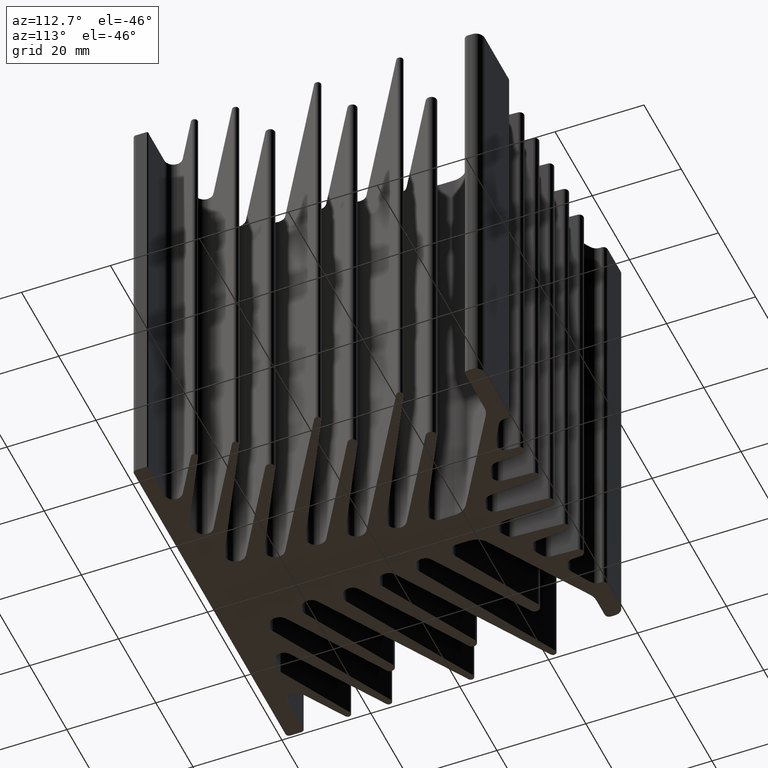
[diagram: clean part render]
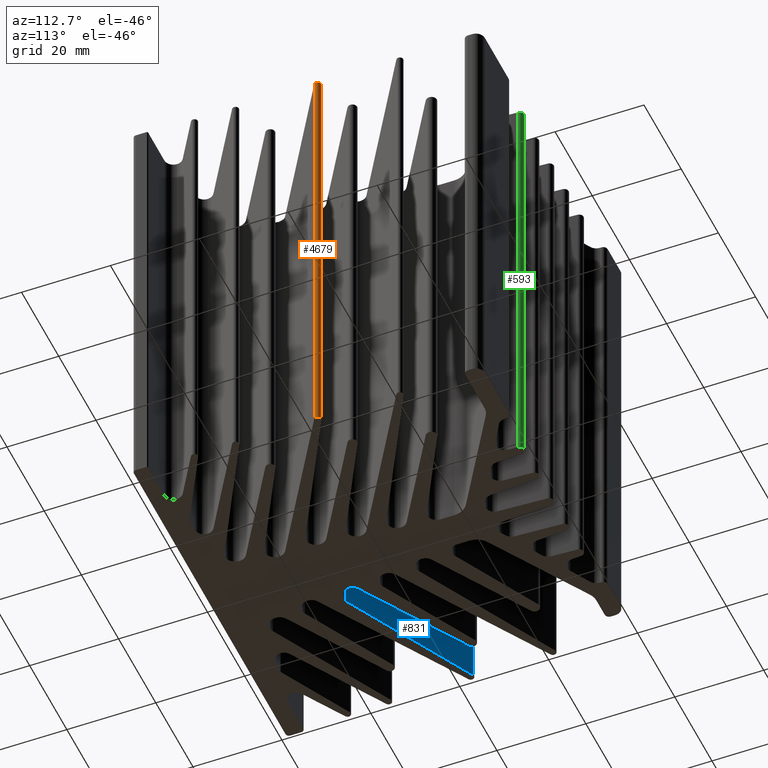
[diagram: same view with three faces highlighted in distinct colors, each labeled with its STEP entity id]
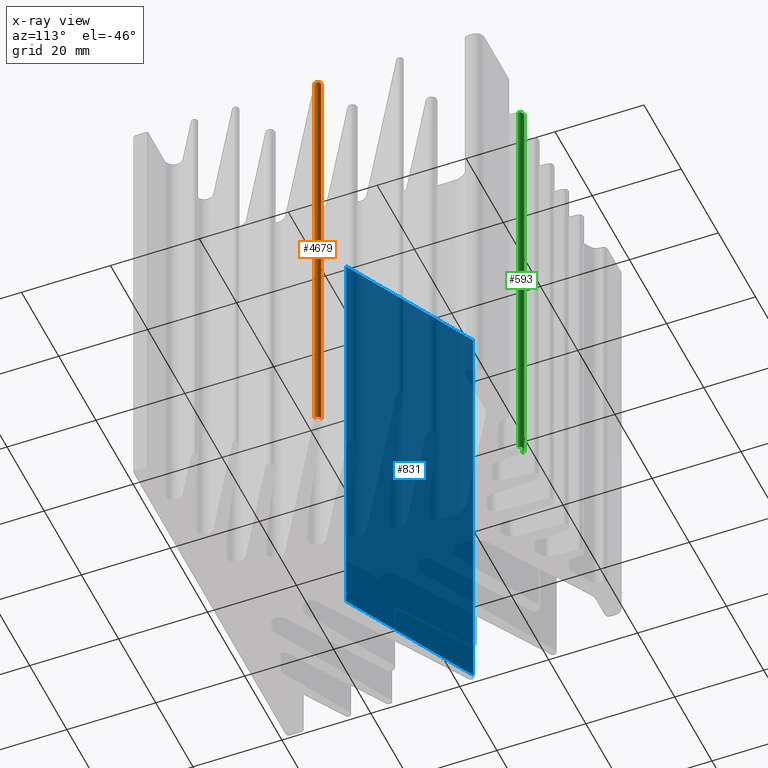
[diagram: x-ray of the same camera — body ghosted, the three highlighted faces saturated]
A machine part, auxiliary view with three faces highlighted in distinct colors.
The next image is the same camera in x-ray (body ghosted, the three faces saturated) — at least one of them is partly hidden behind the body in this view.
Their STEP definitions:

[orange] entity #4679 — the highlighted cylindrical surface (edge-blend (fillet) strip) has radius 0.75 mm, axis along (-0, -0, -1).
#145 = DIRECTION ( 'NONE',  ( 0.0000000000000000000, 0.0000000000000000000, 1.000000000000000000 ) ) ;
#196 = VERTEX_POINT ( 'NONE', #1088 ) ;
#283 = FACE_OUTER_BOUND ( 'NONE', #2472, .T. ) ;
#342 = ORIENTED_EDGE ( 'NONE', *, *, #1888, .F. ) ;
#564 = DIRECTION ( 'NONE',  ( -1.000000000000000000, 0.0000000000000000000, 0.0000000000000000000 ) ) ;
#759 = AXIS2_PLACEMENT_3D ( 'NONE', #1435, #1848, #1783 ) ;
#1070 = AXIS2_PLACEMENT_3D ( 'NONE', #1317, #145, #4347 ) ;
#1088 = CARTESIAN_POINT ( 'NONE',  ( 40.81286055483614916, 1.074023591743298089, 50.00000000000000000 ) ) ;
#1128 = VERTEX_POINT ( 'NONE', #3760 ) ;
#1317 = CARTESIAN_POINT ( 'NONE',  ( 40.39999999998912017, 1.700159489334612584, -50.00000000000000000 ) ) ;
#1424 = LINE ( 'NONE', #4062, #3805 ) ;
#1435 = CARTESIAN_POINT ( 'NONE',  ( 40.39999999998912017, 1.700159489334612584, 50.00000000000000000 ) ) ;
#1783 = DIRECTION ( 'NONE',  ( 1.000000000000000000, 0.0000000000000000000, 0.0000000000000000000 ) ) ;
#1848 = DIRECTION ( 'NONE',  ( 0.0000000000000000000, 0.0000000000000000000, 1.000000000000000000 ) ) ;
#1888 = EDGE_CURVE ( 'NONE', #196, #4807, #2731, .T. ) ;
#1963 = ORIENTED_EDGE ( 'NONE', *, *, #4461, .T. ) ;
#2089 = CARTESIAN_POINT ( 'NONE',  ( 40.06418068438399871, 2.370775167102130876, -50.00000000000000000 ) ) ;
#2358 = EDGE_CURVE ( 'NONE', #1128, #4550, #3577, .T. ) ;
#2472 = EDGE_LOOP ( 'NONE', ( #4587, #3195, #342, #1963 ) ) ;
#2731 = CIRCLE ( 'NONE', #759, 0.7500000000007223111 ) ;
#2848 = CARTESIAN_POINT ( 'NONE',  ( 40.06418068438399871, 2.370775167102130876, 50.00000000000000000 ) ) ;
#3004 = CARTESIAN_POINT ( 'NONE',  ( 40.06418068438399871, 2.370775167102130876, 50.00000000000000000 ) ) ;
#3011 = CYLINDRICAL_SURFACE ( 'NONE', #3955, 0.7500000000007223111 ) ;
#3030 = DIRECTION ( 'NONE',  ( -0.0000000000000000000, -0.0000000000000000000, -1.000000000000000000 ) ) ;
#3110 = LINE ( 'NONE', #2848, #3948 ) ;
#3195 = ORIENTED_EDGE ( 'NONE', *, *, #3780, .F. ) ;
#3577 = CIRCLE ( 'NONE', #1070, 0.7500000000007223111 ) ;
#3698 = DIRECTION ( 'NONE',  ( -0.0000000000000000000, -0.0000000000000000000, -1.000000000000000000 ) ) ;
#3760 = CARTESIAN_POINT ( 'NONE',  ( 40.81286055483614916, 1.074023591743298089, -50.00000000000000000 ) ) ;
#3767 = CARTESIAN_POINT ( 'NONE',  ( 40.39999999998912017, 1.700159489334612584, 50.00000000000000000 ) ) ;
#3780 = EDGE_CURVE ( 'NONE', #4807, #4550, #3110, .T. ) ;
#3805 = VECTOR ( 'NONE', #3698, 1000.000000000000000 ) ;
#3887 = DIRECTION ( 'NONE',  ( -0.0000000000000000000, -0.0000000000000000000, -1.000000000000000000 ) ) ;
#3948 = VECTOR ( 'NONE', #3030, 1000.000000000000000 ) ;
#3955 = AXIS2_PLACEMENT_3D ( 'NONE', #3767, #3887, #564 ) ;
#4062 = CARTESIAN_POINT ( 'NONE',  ( 40.81286055483614916, 1.074023591743298089, 50.00000000000000000 ) ) ;
#4347 = DIRECTION ( 'NONE',  ( 1.000000000000000000, 0.0000000000000000000, 0.0000000000000000000 ) ) ;
#4461 = EDGE_CURVE ( 'NONE', #196, #1128, #1424, .T. ) ;
#4550 = VERTEX_POINT ( 'NONE', #2089 ) ;
#4587 = ORIENTED_EDGE ( 'NONE', *, *, #2358, .T. ) ;
#4679 = ADVANCED_FACE ( 'NONE', ( #283 ), #3011, .T. ) ;
#4807 = VERTEX_POINT ( 'NONE', #3004 ) ;

[blue] entity #831 — the highlighted planar face has unit normal (-0.4741, -0.8805, 0).
#250 = DIRECTION ( 'NONE',  ( -0.8804773535090839598, 0.4740882090472611776, 0.0000000000000000000 ) ) ;
#409 = ORIENTED_EDGE ( 'NONE', *, *, #2507, .T. ) ;
#441 = VECTOR ( 'NONE', #4682, 1000.000000000000000 ) ;
#639 = DIRECTION ( 'NONE',  ( -0.8804773535090839598, 0.4740882090472611776, 0.0000000000000000000 ) ) ;
#831 = ADVANCED_FACE ( 'NONE', ( #4342 ), #2980, .F. ) ;
#842 = DIRECTION ( 'NONE',  ( -0.0000000000000000000, -0.0000000000000000000, -1.000000000000000000 ) ) ;
#983 = ORIENTED_EDGE ( 'NONE', *, *, #4371, .F. ) ;
#1003 = CARTESIAN_POINT ( 'NONE',  ( -40.06418068438687641, 2.970775167098728353, 50.00000000000000000 ) ) ;
#1147 = VERTEX_POINT ( 'NONE', #2873 ) ;
#1183 = CARTESIAN_POINT ( 'NONE',  ( -10.21690614448378831, -13.10032634978836619, -50.00000000000000000 ) ) ;
#1333 = VERTEX_POINT ( 'NONE', #1003 ) ;
#1365 = EDGE_LOOP ( 'NONE', ( #409, #3212, #983, #2351 ) ) ;
#1383 = DIRECTION ( 'NONE',  ( 0.8804773535090839598, -0.4740882090472611776, 0.0000000000000000000 ) ) ;
#1563 = CARTESIAN_POINT ( 'NONE',  ( -40.06418068438687641, 2.970775167098728353, -50.00000000000000000 ) ) ;
#1702 = VECTOR ( 'NONE', #842, 1000.000000000000000 ) ;
#1881 = VECTOR ( 'NONE', #250, 1000.000000000000000 ) ;
#2112 = EDGE_CURVE ( 'NONE', #1333, #3245, #2869, .T. ) ;
#2205 = CARTESIAN_POINT ( 'NONE',  ( -10.21690614448378831, -13.10032634978836619, 50.00000000000000000 ) ) ;
#2288 = VECTOR ( 'NONE', #639, 1000.000000000000000 ) ;
#2300 = CARTESIAN_POINT ( 'NONE',  ( -10.21690614448378831, -13.10032634978836619, 50.00000000000000000 ) ) ;
#2351 = ORIENTED_EDGE ( 'NONE', *, *, #3935, .T. ) ;
#2411 = LINE ( 'NONE', #2205, #2288 ) ;
#2507 = EDGE_CURVE ( 'NONE', #1147, #3245, #3736, .T. ) ;
#2869 = LINE ( 'NONE', #3676, #1702 ) ;
#2873 = CARTESIAN_POINT ( 'NONE',  ( -10.21690614448378831, -13.10032634978836619, -50.00000000000000000 ) ) ;
#2980 = PLANE ( 'NONE',  #3589 ) ;
#3212 = ORIENTED_EDGE ( 'NONE', *, *, #2112, .F. ) ;
#3245 = VERTEX_POINT ( 'NONE', #1563 ) ;
#3466 = CARTESIAN_POINT ( 'NONE',  ( -10.21690614448378831, -13.10032634978836619, 50.00000000000000000 ) ) ;
#3589 = AXIS2_PLACEMENT_3D ( 'NONE', #3994, #4147, #1383 ) ;
#3676 = CARTESIAN_POINT ( 'NONE',  ( -40.06418068438687641, 2.970775167098728353, 50.00000000000000000 ) ) ;
#3736 = LINE ( 'NONE', #1183, #1881 ) ;
#3935 = EDGE_CURVE ( 'NONE', #4206, #1147, #4356, .T. ) ;
#3994 = CARTESIAN_POINT ( 'NONE',  ( -10.21690614448378831, -13.10032634978836619, 50.00000000000000000 ) ) ;
#4147 = DIRECTION ( 'NONE',  ( -0.4740882090472611776, -0.8804773535090839598, 0.0000000000000000000 ) ) ;
#4206 = VERTEX_POINT ( 'NONE', #2300 ) ;
#4342 = FACE_OUTER_BOUND ( 'NONE', #1365, .T. ) ;
#4356 = LINE ( 'NONE', #3466, #441 ) ;
#4371 = EDGE_CURVE ( 'NONE', #4206, #1333, #2411, .T. ) ;
#4682 = DIRECTION ( 'NONE',  ( -0.0000000000000000000, -0.0000000000000000000, -1.000000000000000000 ) ) ;

[green] entity #593 — the highlighted cylindrical surface (edge-blend (fillet) strip) has radius 1 mm, axis along (-0, -0, -1).
#244 = ORIENTED_EDGE ( 'NONE', *, *, #297, .F. ) ;
#297 = EDGE_CURVE ( 'NONE', #4213, #4290, #512, .T. ) ;
#347 = CARTESIAN_POINT ( 'NONE',  ( 15.00102793039844329, 36.94532994783502033, 50.00000000000000000 ) ) ;
#385 = CARTESIAN_POINT ( 'NONE',  ( 15.00102793039844329, 36.94532994783502033, -50.00000000000000000 ) ) ;
#512 = CIRCLE ( 'NONE', #818, 1.000000000000476286 ) ;
#593 = ADVANCED_FACE ( 'NONE', ( #1468 ), #2169, .T. ) ;
#631 = EDGE_CURVE ( 'NONE', #2071, #3149, #2944, .T. ) ;
#650 = DIRECTION ( 'NONE',  ( 0.0000000000000000000, 0.0000000000000000000, 1.000000000000000000 ) ) ;
#818 = AXIS2_PLACEMENT_3D ( 'NONE', #2277, #1297, #1014 ) ;
#927 = ORIENTED_EDGE ( 'NONE', *, *, #631, .T. ) ;
#1014 = DIRECTION ( 'NONE',  ( 1.000000000000000000, 0.0000000000000000000, 0.0000000000000000000 ) ) ;
#1027 = CARTESIAN_POINT ( 'NONE',  ( 15.99999999999319655, 36.90000000000222258, -50.00000000000000000 ) ) ;
#1185 = AXIS2_PLACEMENT_3D ( 'NONE', #1027, #650, #2862 ) ;
#1297 = DIRECTION ( 'NONE',  ( 0.0000000000000000000, 0.0000000000000000000, 1.000000000000000000 ) ) ;
#1459 = EDGE_LOOP ( 'NONE', ( #927, #3193, #244, #4769 ) ) ;
#1468 = FACE_OUTER_BOUND ( 'NONE', #1459, .T. ) ;
#1494 = EDGE_CURVE ( 'NONE', #4213, #2071, #2433, .T. ) ;
#1785 = VECTOR ( 'NONE', #2907, 1000.000000000000000 ) ;
#1844 = CARTESIAN_POINT ( 'NONE',  ( 15.00102793039844329, 36.94532994783502033, 50.00000000000000000 ) ) ;
#2071 = VERTEX_POINT ( 'NONE', #2084 ) ;
#2084 = CARTESIAN_POINT ( 'NONE',  ( 16.99897206958803508, 36.94532994783317292, -50.00000000000000000 ) ) ;
#2093 = AXIS2_PLACEMENT_3D ( 'NONE', #2602, #4730, #4412 ) ;
#2129 = DIRECTION ( 'NONE',  ( -0.0000000000000000000, -0.0000000000000000000, -1.000000000000000000 ) ) ;
#2169 = CYLINDRICAL_SURFACE ( 'NONE', #2093, 1.000000000000474509 ) ;
#2277 = CARTESIAN_POINT ( 'NONE',  ( 15.99999999999319655, 36.90000000000222258, 50.00000000000000000 ) ) ;
#2433 = LINE ( 'NONE', #4005, #1785 ) ;
#2593 = LINE ( 'NONE', #347, #4432 ) ;
#2602 = CARTESIAN_POINT ( 'NONE',  ( 15.99999999999319655, 36.90000000000222258, 50.00000000000000000 ) ) ;
#2862 = DIRECTION ( 'NONE',  ( 1.000000000000000000, 0.0000000000000000000, 0.0000000000000000000 ) ) ;
#2894 = CARTESIAN_POINT ( 'NONE',  ( 16.99897206958803508, 36.94532994783317292, 50.00000000000000000 ) ) ;
#2907 = DIRECTION ( 'NONE',  ( -0.0000000000000000000, -0.0000000000000000000, -1.000000000000000000 ) ) ;
#2944 = CIRCLE ( 'NONE', #1185, 1.000000000000476286 ) ;
#3149 = VERTEX_POINT ( 'NONE', #385 ) ;
#3193 = ORIENTED_EDGE ( 'NONE', *, *, #4103, .F. ) ;
#4005 = CARTESIAN_POINT ( 'NONE',  ( 16.99897206958803508, 36.94532994783317292, 50.00000000000000000 ) ) ;
#4103 = EDGE_CURVE ( 'NONE', #4290, #3149, #2593, .T. ) ;
#4213 = VERTEX_POINT ( 'NONE', #2894 ) ;
#4290 = VERTEX_POINT ( 'NONE', #1844 ) ;
#4412 = DIRECTION ( 'NONE',  ( -1.000000000000000000, 0.0000000000000000000, 0.0000000000000000000 ) ) ;
#4432 = VECTOR ( 'NONE', #2129, 1000.000000000000000 ) ;
#4730 = DIRECTION ( 'NONE',  ( -0.0000000000000000000, -0.0000000000000000000, -1.000000000000000000 ) ) ;
#4769 = ORIENTED_EDGE ( 'NONE', *, *, #1494, .T. ) ;